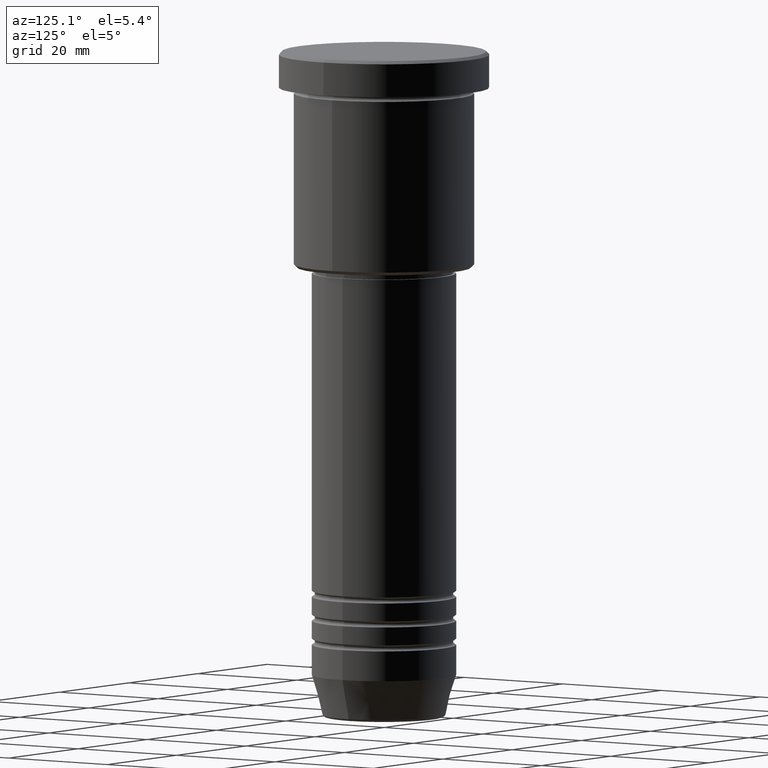
[diagram: clean part render]
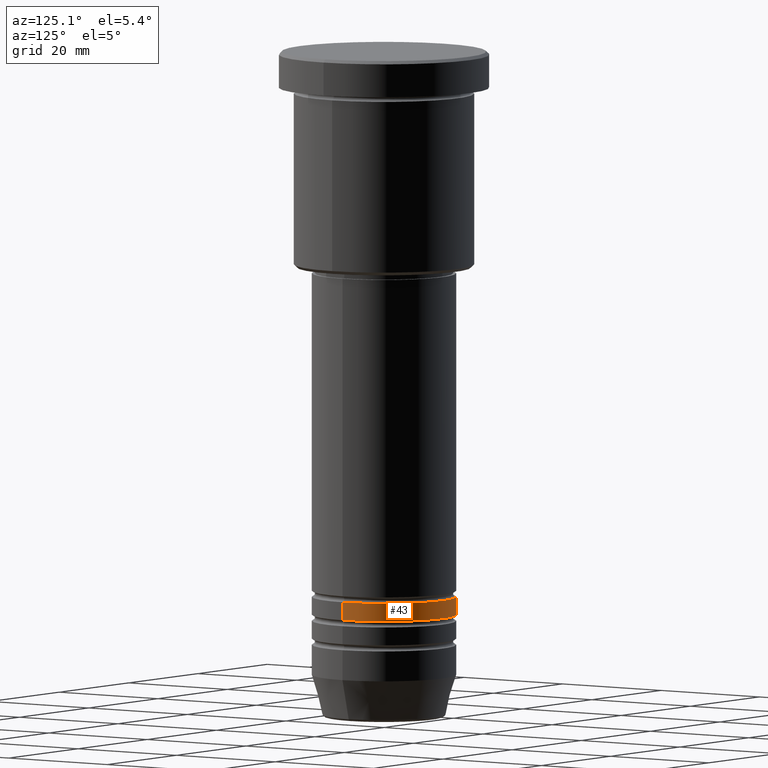
[diagram: same view with one face highlighted and labeled with its STEP entity id]
A machine part, auxiliary view. The second image highlights one B-rep face of the part: STEP entity #43.
In plain terms, the highlighted cylindrical surface (partial cylindrical patch) has radius 12 mm, axis along (-0, -0, 1).
Its self-contained STEP definition (entity closure, byte-faithful):
#39 = CARTESIAN_POINT ( 'NONE',  ( -12.00000000000000533, 1.469576158976824539E-15, -93.99999999999990052 ) ) ;
#43 = ADVANCED_FACE ( 'NONE', ( #130 ), #415, .T. ) ;
#53 = CARTESIAN_POINT ( 'NONE',  ( 12.00000000000000178, 0.000000000000000000, 0.000000000000000000 ) ) ;
#54 = CARTESIAN_POINT ( 'NONE',  ( 0.000000000000000000, 0.000000000000000000, -90.99999999999988631 ) ) ;
#124 = ORIENTED_EDGE ( 'NONE', *, *, #941, .T. ) ;
#130 = FACE_OUTER_BOUND ( 'NONE', #1178, .T. ) ;
#136 = CARTESIAN_POINT ( 'NONE',  ( 12.00000000000000000, 0.000000000000000000, -90.99999999999988631 ) ) ;
#159 = ORIENTED_EDGE ( 'NONE', *, *, #168, .T. ) ;
#168 = EDGE_CURVE ( 'NONE', #688, #698, #1107, .T. ) ;
#180 = VERTEX_POINT ( 'NONE', #1129 ) ;
#185 = VECTOR ( 'NONE', #1154, 1000.000000000000000 ) ;
#192 = CARTESIAN_POINT ( 'NONE',  ( -12.00000000000000178, 1.469576158976824144E-15, 0.000000000000000000 ) ) ;
#243 = EDGE_CURVE ( 'NONE', #1001, #698, #596, .T. ) ;
#262 = ORIENTED_EDGE ( 'NONE', *, *, #243, .F. ) ;
#336 = CARTESIAN_POINT ( 'NONE',  ( 0.000000000000000000, 0.000000000000000000, -93.99999999999990052 ) ) ;
#400 = AXIS2_PLACEMENT_3D ( 'NONE', #54, #991, #807 ) ;
#415 = CYLINDRICAL_SURFACE ( 'NONE', #1181, 12.00000000000000178 ) ;
#512 = CARTESIAN_POINT ( 'NONE',  ( -12.00000000000000000, 1.469576158976824144E-15, -90.99999999999988631 ) ) ;
#517 = DIRECTION ( 'NONE',  ( 1.000000000000000000, 0.000000000000000000, 0.000000000000000000 ) ) ;
#520 = DIRECTION ( 'NONE',  ( 1.000000000000000000, 0.000000000000000000, 0.000000000000000000 ) ) ;
#596 = CIRCLE ( 'NONE', #400, 12.00000000000000000 ) ;
#660 = DIRECTION ( 'NONE',  ( -0.000000000000000000, -0.000000000000000000, 1.000000000000000000 ) ) ;
#671 = AXIS2_PLACEMENT_3D ( 'NONE', #336, #1077, #520 ) ;
#679 = DIRECTION ( 'NONE',  ( -0.000000000000000000, -0.000000000000000000, 1.000000000000000000 ) ) ;
#688 = VERTEX_POINT ( 'NONE', #39 ) ;
#698 = VERTEX_POINT ( 'NONE', #512 ) ;
#743 = VECTOR ( 'NONE', #660, 1000.000000000000000 ) ;
#760 = CARTESIAN_POINT ( 'NONE',  ( 0.000000000000000000, 0.000000000000000000, 0.000000000000000000 ) ) ;
#807 = DIRECTION ( 'NONE',  ( 1.000000000000000000, 0.000000000000000000, 0.000000000000000000 ) ) ;
#879 = CIRCLE ( 'NONE', #671, 12.00000000000000355 ) ;
#941 = EDGE_CURVE ( 'NONE', #180, #688, #879, .T. ) ;
#991 = DIRECTION ( 'NONE',  ( -0.000000000000000000, -0.000000000000000000, 1.000000000000000000 ) ) ;
#1001 = VERTEX_POINT ( 'NONE', #136 ) ;
#1003 = EDGE_CURVE ( 'NONE', #180, #1001, #1146, .T. ) ;
#1035 = ORIENTED_EDGE ( 'NONE', *, *, #1003, .F. ) ;
#1077 = DIRECTION ( 'NONE',  ( -0.000000000000000000, -0.000000000000000000, 1.000000000000000000 ) ) ;
#1107 = LINE ( 'NONE', #192, #743 ) ;
#1129 = CARTESIAN_POINT ( 'NONE',  ( 12.00000000000000355, 0.000000000000000000, -93.99999999999990052 ) ) ;
#1146 = LINE ( 'NONE', #53, #185 ) ;
#1154 = DIRECTION ( 'NONE',  ( -0.000000000000000000, -0.000000000000000000, 1.000000000000000000 ) ) ;
#1178 = EDGE_LOOP ( 'NONE', ( #124, #159, #262, #1035 ) ) ;
#1181 = AXIS2_PLACEMENT_3D ( 'NONE', #760, #679, #517 ) ;